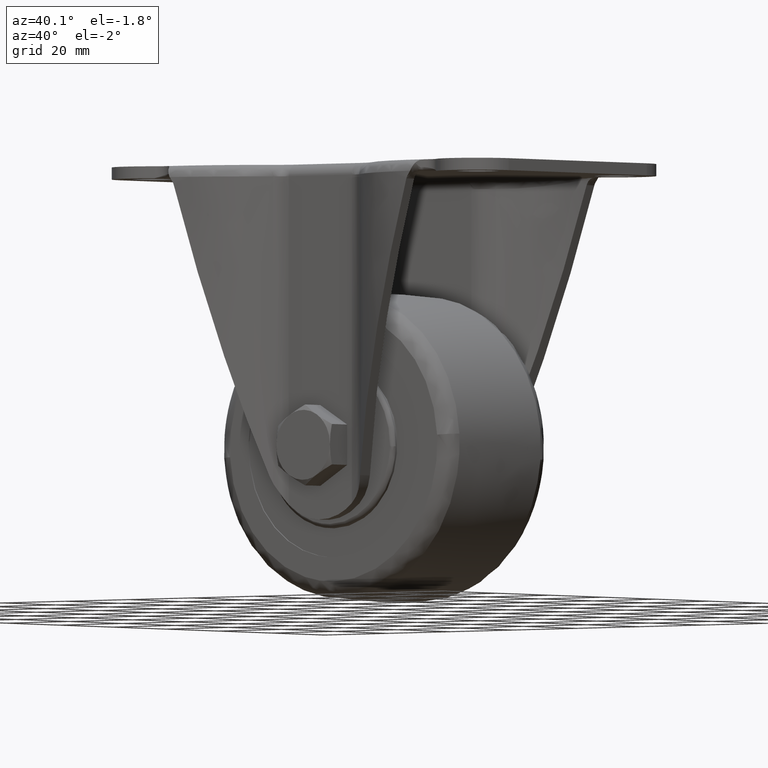
[diagram: clean part render]
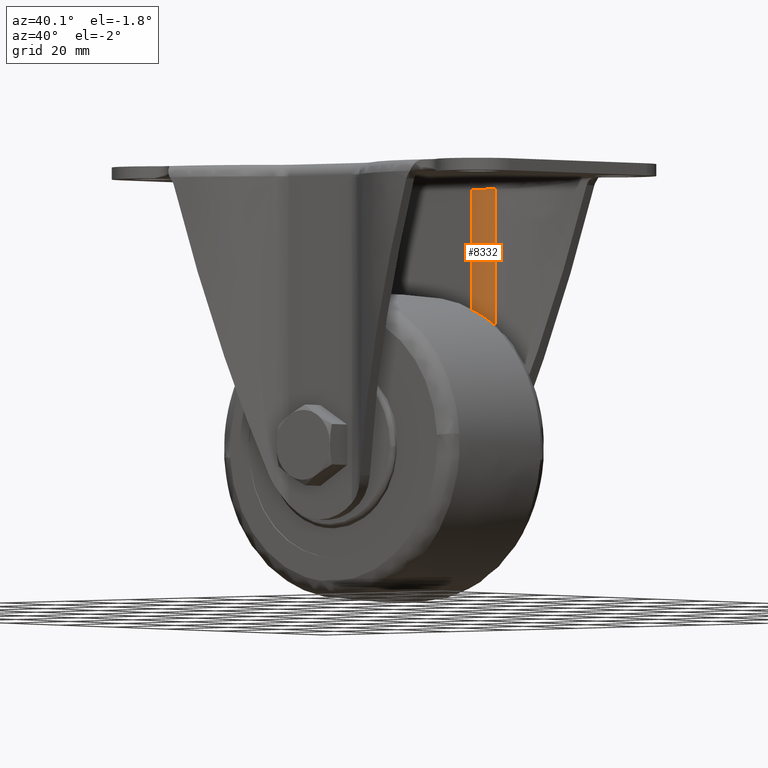
[diagram: same view with one face highlighted and labeled with its STEP entity id]
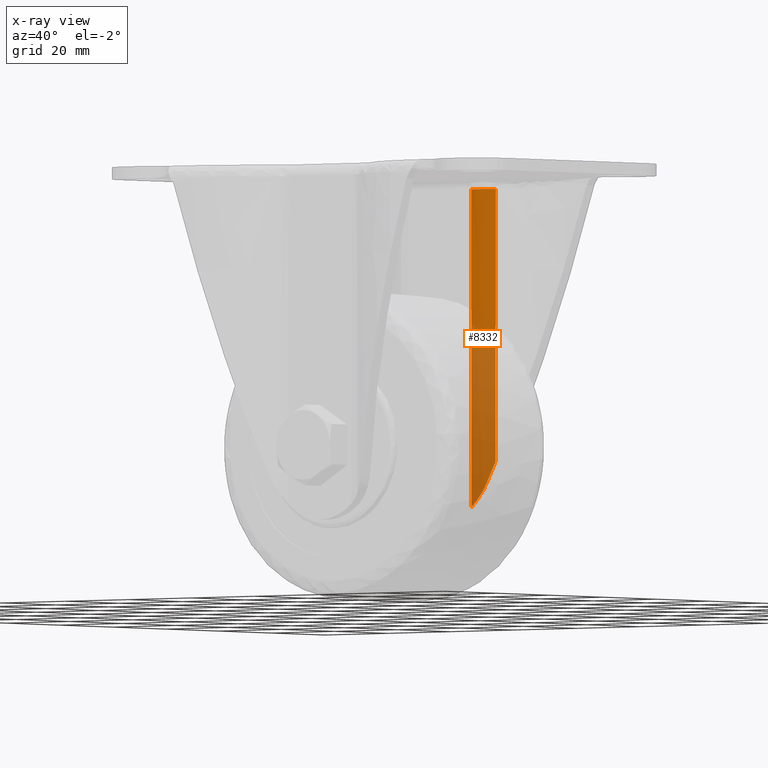
[diagram: x-ray of the same camera — body ghosted, the highlighted face saturated]
A machine part, auxiliary view. The second image highlights one B-rep face of the part: STEP entity #8332.
The next image is the same camera in x-ray: the body ghosted, the highlighted face saturated — about 51% of this face is hidden behind the body in this view.
In plain terms, the highlighted face is a freeform B-spline surface patch.
Its self-contained STEP definition (entity closure, byte-faithful):
#7633=CARTESIAN_POINT('',(15.730752308236500,23.383727355105648,-5.400000000000000));
#7634=VERTEX_POINT('',#7633);
#7745=CARTESIAN_POINT('',(9.973043655194289,21.100000000000001,-5.400000000000000));
#7746=VERTEX_POINT('',#7745);
#7760=CARTESIAN_POINT('',(15.730752308236500,23.383727355105648,-5.400000000000000));
#7761=CARTESIAN_POINT('',(13.304804766926052,21.099999999999994,-5.400000000000001));
#7762=CARTESIAN_POINT('',(9.973043655194289,21.100000000000001,-5.400000000000000));
#7770=(BOUNDED_CURVE()B_SPLINE_CURVE(2,(#7760,#7761,#7762),.UNSPECIFIED.,.F.,.U.)CURVE()GEOMETRIC_REPRESENTATION_ITEM()QUASI_UNIFORM_CURVE()RATIONAL_B_SPLINE_CURVE((1.0,0.929550347162744,1.0))REPRESENTATION_ITEM(''));
#7771=EDGE_CURVE('',#7634,#7746,#7770,.T.);
#8102=CARTESIAN_POINT('',(14.298687000000101,22.299388244493549,-76.032942000000006));
#8103=VERTEX_POINT('',#8102);
#8104=CARTESIAN_POINT('',(9.973043655194289,21.100000000000001,-82.704393452130105));
#8105=VERTEX_POINT('',#8104);
#8106=CARTESIAN_POINT('',(14.298687000000051,22.299388244493560,-76.032941999999977));
#8107=CARTESIAN_POINT('',(14.095655097031440,22.177420329866329,-76.673384908146915));
#8108=CARTESIAN_POINT('',(13.852419587537771,22.042893064963351,-77.292333555341088));
#8109=CARTESIAN_POINT('',(13.286605158730870,21.774826110222641,-78.493338492607819));
#8110=CARTESIAN_POINT('',(12.964040795915359,21.641141182565100,-79.075370442533753));
#8111=CARTESIAN_POINT('',(12.507680418014820,21.490952032633992,-79.781680992938774));
#8112=CARTESIAN_POINT('',(12.413891604429869,21.461826581299981,-79.921612247732810));
#8113=CARTESIAN_POINT('',(12.222125151092969,21.406076165098341,-80.197580997393231));
#8114=CARTESIAN_POINT('',(12.124024788297200,21.379409985354641,-80.333810192835841));
#8115=CARTESIAN_POINT('',(11.823063242104190,21.303644980130489,-80.737305803986317));
#8116=CARTESIAN_POINT('',(11.613551666343920,21.258768580955259,-80.999387458657964));
#8117=CARTESIAN_POINT('',(11.176502438318719,21.183699813365500,-81.509932023654287));
#8118=CARTESIAN_POINT('',(10.948966235252570,21.153496794950890,-81.758394757989294));
#8119=CARTESIAN_POINT('',(10.475245021916420,21.111654846072131,-82.241683655687794));
#8120=CARTESIAN_POINT('',(10.229063021882650,21.100000000000001,-82.476510286411568));
#8121=CARTESIAN_POINT('',(9.973043655194278,21.100000000000001,-82.704393452130091));
#8122=B_SPLINE_CURVE_WITH_KNOTS('',3,(#8106,#8107,#8108,#8109,#8110,#8111,#8112,#8113,#8114,#8115,#8116,#8117,#8118,#8119,#8120,#8121),.UNSPECIFIED.,.F.,.U.,(4,2,2,2,2,2,2,4),(0.0,0.250000000000000,0.500000000000000,0.562500000000000,0.625000000000000,0.750000000000000,0.875000000000000,1.0),.UNSPECIFIED.);
#8123=EDGE_CURVE('',#8103,#8105,#8122,.T.);
#8186=CARTESIAN_POINT('',(15.730752308236500,23.383727355105648,-71.515642962983094));
#8187=VERTEX_POINT('',#8186);
#8201=CARTESIAN_POINT('',(14.298687000000051,22.299388244493549,-76.032942000000133));
#8202=CARTESIAN_POINT('',(15.073023247360570,22.764557392444836,-73.590379943359949));
#8203=CARTESIAN_POINT('',(15.730752308236490,23.383727355105648,-71.515642962983136));
#8211=(BOUNDED_CURVE()B_SPLINE_CURVE(2,(#8201,#8202,#8203),.UNSPECIFIED.,.F.,.U.)CURVE()GEOMETRIC_REPRESENTATION_ITEM()QUASI_UNIFORM_CURVE()RATIONAL_B_SPLINE_CURVE((1.0,0.994267507840662,1.0))REPRESENTATION_ITEM(''));
#8212=EDGE_CURVE('',#8103,#8187,#8211,.T.);
#8298=CARTESIAN_POINT('',(15.730752308236500,23.383727355105648,-71.515642962983094));
#8299=CARTESIAN_POINT('',(15.730752308236500,23.383727355105648,-5.400000000000000));
#8300=QUASI_UNIFORM_CURVE('',1,(#8298,#8299),.UNSPECIFIED.,.F.,.U.);
#8301=EDGE_CURVE('',#8187,#7634,#8300,.T.);
#8307=CARTESIAN_POINT('',(15.950432473430732,23.598235609953427,-84.637003288433391));
#8308=CARTESIAN_POINT('',(15.950432473430732,23.598235609953427,-3.419074917789160));
#8309=CARTESIAN_POINT('',(13.355080843113052,20.969627487166225,-84.637003288433334));
#8310=CARTESIAN_POINT('',(13.355080843113052,20.969627487166225,-3.419074917789161));
#8311=CARTESIAN_POINT('',(9.663615724022554,21.105701080172885,-84.637003288433348));
#8312=CARTESIAN_POINT('',(9.663615724022554,21.105701080172885,-3.419074917789161));
#8320=(BOUNDED_SURFACE()B_SPLINE_SURFACE(1,2,((#8307,#8309,#8311),(#8308,#8310,#8312)),.UNSPECIFIED.,.F.,.F.,.U.)B_SPLINE_SURFACE_WITH_KNOTS((2,2),(3,3),(0.0,81.217928370644231),(0.0,7.061585645088339),.UNSPECIFIED.)GEOMETRIC_REPRESENTATION_ITEM()RATIONAL_B_SPLINE_SURFACE(((0.999478268164287,0.911144850594864,0.991249598011532),(0.999478268164287,0.911144850594864,0.991249598011532)))REPRESENTATION_ITEM('')SURFACE());
#8321=ORIENTED_EDGE('',*,*,#8301,.T.);
#8322=ORIENTED_EDGE('',*,*,#7771,.T.);
#8323=CARTESIAN_POINT('',(9.973043655194289,21.100000000000001,-82.704393452130105));
#8324=CARTESIAN_POINT('',(9.973043655194289,21.100000000000001,-5.400000000000000));
#8325=QUASI_UNIFORM_CURVE('',1,(#8323,#8324),.UNSPECIFIED.,.F.,.U.);
#8326=EDGE_CURVE('',#8105,#7746,#8325,.T.);
#8327=ORIENTED_EDGE('',*,*,#8326,.F.);
#8328=ORIENTED_EDGE('',*,*,#8123,.F.);
#8329=ORIENTED_EDGE('',*,*,#8212,.T.);
#8330=EDGE_LOOP('',(#8321,#8322,#8327,#8328,#8329));
#8331=FACE_OUTER_BOUND('',#8330,.T.);
#8332=ADVANCED_FACE('',(#8331),#8320,.T.);